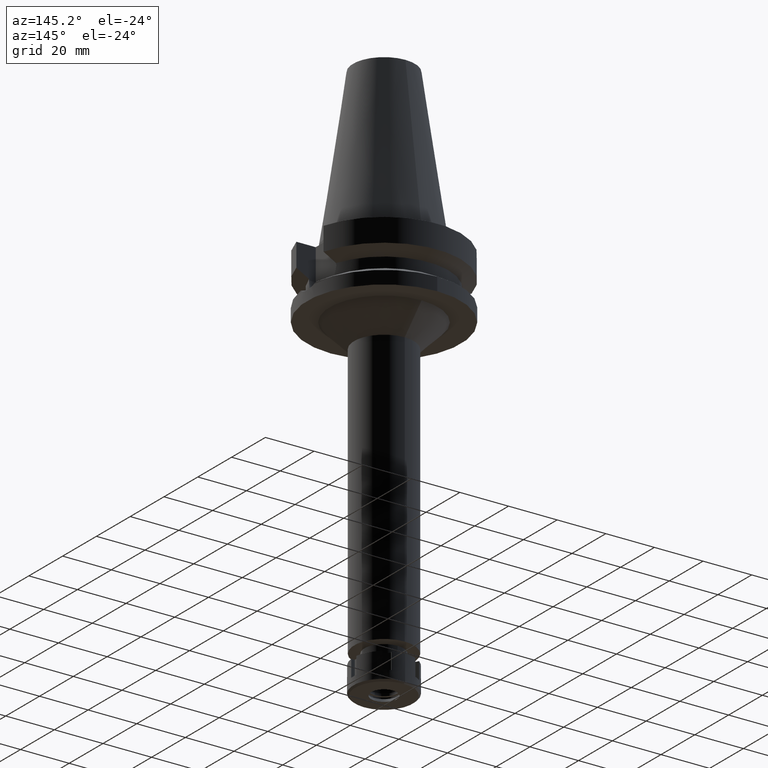
[diagram: clean part render]
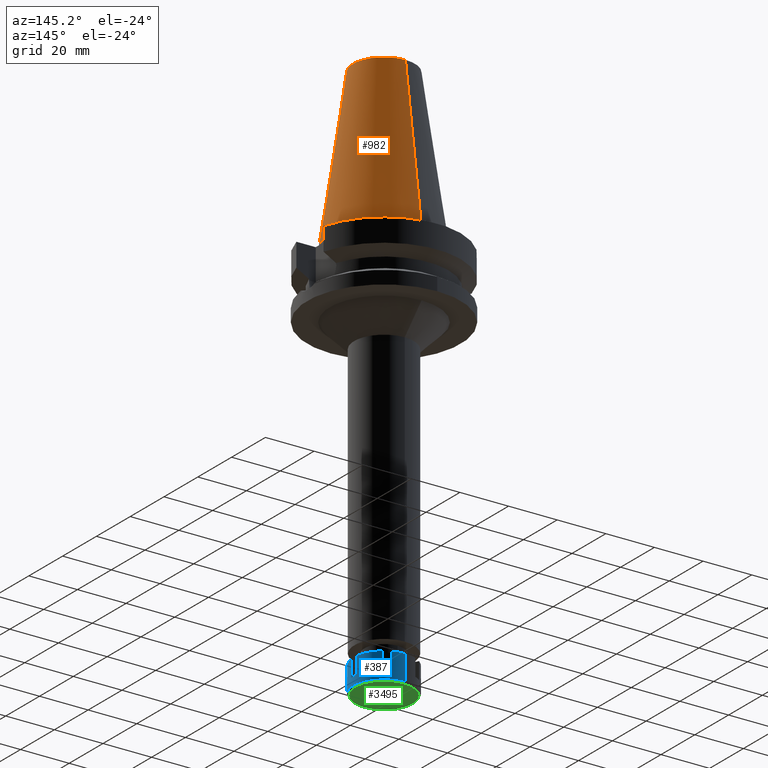
[diagram: same view with three faces highlighted in distinct colors, each labeled with its STEP entity id]
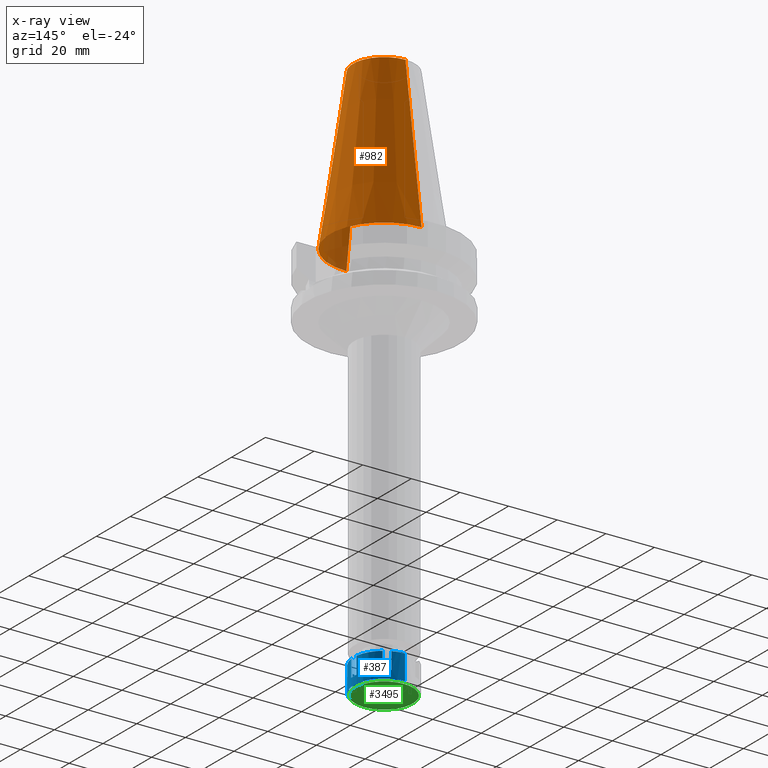
[diagram: x-ray of the same camera — body ghosted, the three highlighted faces saturated]
A machine part, auxiliary view with three faces highlighted in distinct colors.
The next image is the same camera in x-ray (body ghosted, the three faces saturated) — at least one of them is partly hidden behind the body in this view.
Their STEP definitions:

[orange] entity #982 — the highlighted conical surface has half-angle 8.297 deg.
#57 = EDGE_LOOP ( 'NONE', ( #3162, #2726, #2235, #1450 ) ) ;
#169 = LINE ( 'NONE', #730, #2817 ) ;
#188 = DIRECTION ( 'NONE',  ( 0.0000000000000000000, 1.000000000000000000, 0.0000000000000000000 ) ) ;
#192 = DIRECTION ( 'NONE',  ( 0.0000000000000000000, 1.000000000000000000, 0.0000000000000000000 ) ) ;
#277 = EDGE_CURVE ( 'NONE', #735, #799, #574, .T. ) ;
#487 = CARTESIAN_POINT ( 'NONE',  ( 0.0000000000000000000, 1.625106302469000024E-14, 65.40000000000000568 ) ) ;
#574 = CIRCLE ( 'NONE', #1051, 12.68766899429999917 ) ;
#685 = AXIS2_PLACEMENT_3D ( 'NONE', #2084, #2322, #1554 ) ;
#728 = EDGE_CURVE ( 'NONE', #1716, #2771, #2115, .T. ) ;
#730 = CARTESIAN_POINT ( 'NONE',  ( 0.0000000000000000000, 12.68766899429999917, 65.40000000000000568 ) ) ;
#735 = VERTEX_POINT ( 'NONE', #768 ) ;
#768 = CARTESIAN_POINT ( 'NONE',  ( 0.0000000000000000000, 12.68766899429999917, 65.40000000000000568 ) ) ;
#799 = VERTEX_POINT ( 'NONE', #1954 ) ;
#961 = DIRECTION ( 'NONE',  ( 0.0000000000000000000, -0.1443043893539925626, -0.9895333461855498891 ) ) ;
#982 = ADVANCED_FACE ( 'NONE', ( #3232 ), #3573, .T. ) ;
#1051 = AXIS2_PLACEMENT_3D ( 'NONE', #487, #2723, #192 ) ;
#1450 = ORIENTED_EDGE ( 'NONE', *, *, #1981, .F. ) ;
#1554 = DIRECTION ( 'NONE',  ( 0.0000000000000000000, -1.000000000000000000, 0.0000000000000000000 ) ) ;
#1716 = VERTEX_POINT ( 'NONE', #2248 ) ;
#1954 = CARTESIAN_POINT ( 'NONE',  ( 0.0000000000000000000, -12.68766899429999917, 65.40000000000000568 ) ) ;
#1981 = EDGE_CURVE ( 'NONE', #735, #1716, #169, .T. ) ;
#1984 = CARTESIAN_POINT ( 'NONE',  ( 0.0000000000000000000, -22.22500000000000142, 2.842170943039999687E-14 ) ) ;
#2084 = CARTESIAN_POINT ( 'NONE',  ( 0.0000000000000000000, 1.625106302469000024E-14, 32.70000000000000284 ) ) ;
#2115 = CIRCLE ( 'NONE', #3405, 22.22500000000000142 ) ;
#2148 = LINE ( 'NONE', #3509, #3113 ) ;
#2235 = ORIENTED_EDGE ( 'NONE', *, *, #728, .F. ) ;
#2248 = CARTESIAN_POINT ( 'NONE',  ( 0.0000000000000000000, 22.22500000000000142, 7.105427357600999334E-14 ) ) ;
#2322 = DIRECTION ( 'NONE',  ( 0.0000000000000000000, 0.0000000000000000000, -1.000000000000000000 ) ) ;
#2573 = EDGE_CURVE ( 'NONE', #799, #2771, #2148, .T. ) ;
#2707 = DIRECTION ( 'NONE',  ( 0.0000000000000000000, 0.1443043893539925626, -0.9895333461855498891 ) ) ;
#2719 = DIRECTION ( 'NONE',  ( 0.0000000000000000000, 0.0000000000000000000, -1.000000000000000000 ) ) ;
#2723 = DIRECTION ( 'NONE',  ( 0.0000000000000000000, 0.0000000000000000000, -1.000000000000000000 ) ) ;
#2726 = ORIENTED_EDGE ( 'NONE', *, *, #2573, .T. ) ;
#2771 = VERTEX_POINT ( 'NONE', #1984 ) ;
#2817 = VECTOR ( 'NONE', #2707, 1000.000000000000114 ) ;
#3113 = VECTOR ( 'NONE', #961, 1000.000000000000114 ) ;
#3162 = ORIENTED_EDGE ( 'NONE', *, *, #277, .T. ) ;
#3232 = FACE_OUTER_BOUND ( 'NONE', #57, .T. ) ;
#3405 = AXIS2_PLACEMENT_3D ( 'NONE', #3548, #2719, #188 ) ;
#3509 = CARTESIAN_POINT ( 'NONE',  ( 0.0000000000000000000, -12.68766899429999917, 65.40000000000000568 ) ) ;
#3548 = CARTESIAN_POINT ( 'NONE',  ( 0.0000000000000000000, 1.625106302469000024E-14, 2.842170943039999687E-14 ) ) ;
#3573 = CONICAL_SURFACE ( 'NONE', #685, 17.45633449714999941, 0.1448099680379422438 ) ;

[blue] entity #387 — the highlighted cylindrical surface (partial cylindrical patch) has radius 12.5 mm, axis along (0, 0, -1).
#10 = VERTEX_POINT ( 'NONE', #11 ) ;
#11 = CARTESIAN_POINT ( 'NONE',  ( 12.40967364599000078, 1.500000000000000000, 0.0000000000000000000 ) ) ;
#30 = VECTOR ( 'NONE', #1819, 1000.000000000000000 ) ;
#45 = ORIENTED_EDGE ( 'NONE', *, *, #1725, .T. ) ;
#73 = ORIENTED_EDGE ( 'NONE', *, *, #2090, .T. ) ;
#89 = CARTESIAN_POINT ( 'NONE',  ( 0.0000000000000000000, 12.50000000000000000, 0.0000000000000000000 ) ) ;
#94 = CIRCLE ( 'NONE', #814, 12.50000000000000355 ) ;
#96 = VECTOR ( 'NONE', #3644, 1000.000000000000000 ) ;
#102 = CARTESIAN_POINT ( 'NONE',  ( 4.905798717319999724, 11.49709263010000093, 0.0000000000000000000 ) ) ;
#147 = EDGE_LOOP ( 'NONE', ( #915, #45, #1071, #870, #2335, #2204, #1055, #2574, #3131, #2313, #1132, #3464, #677, #1455, #931, #73 ) ) ;
#154 = CIRCLE ( 'NONE', #629, 12.50000000000000178 ) ;
#191 = EDGE_CURVE ( 'NONE', #2784, #2708, #94, .T. ) ;
#193 = DIRECTION ( 'NONE',  ( 0.6003099942937818456, 0.7997674104081758939, 0.0000000000000000000 ) ) ;
#211 = CARTESIAN_POINT ( 'NONE',  ( 12.40967364599000078, -1.500000000000000000, 0.0000000000000000000 ) ) ;
#227 = VERTEX_POINT ( 'NONE', #1355 ) ;
#261 = DIRECTION ( 'NONE',  ( 0.0000000000000000000, 0.0000000000000000000, 1.000000000000000000 ) ) ;
#286 = LINE ( 'NONE', #3089, #96 ) ;
#298 = DIRECTION ( 'NONE',  ( 0.6003099942937818456, -0.7997674104081758939, 0.0000000000000000000 ) ) ;
#322 = VECTOR ( 'NONE', #1828, 1000.000000000000000 ) ;
#358 = VERTEX_POINT ( 'NONE', #597 ) ;
#387 = ADVANCED_FACE ( 'NONE', ( #1428 ), #844, .T. ) ;
#399 = AXIS2_PLACEMENT_3D ( 'NONE', #3027, #3582, #2185 ) ;
#433 = DIRECTION ( 'NONE',  ( 0.0000000000000000000, 0.0000000000000000000, 1.000000000000000000 ) ) ;
#488 = DIRECTION ( 'NONE',  ( 0.0000000000000000000, 0.0000000000000000000, -1.000000000000000000 ) ) ;
#513 = CARTESIAN_POINT ( 'NONE',  ( 0.0000000000000000000, 12.50000000000000000, -10.30000000000000071 ) ) ;
#528 = DIRECTION ( 'NONE',  ( 0.3924638973854109314, -0.9197674104082257385, 0.0000000000000000000 ) ) ;
#550 = EDGE_CURVE ( 'NONE', #2850, #3247, #2367, .T. ) ;
#572 = LINE ( 'NONE', #2307, #2770 ) ;
#597 = CARTESIAN_POINT ( 'NONE',  ( 4.905798717318000435, -11.49709263010000093, -7.000000000000000000 ) ) ;
#629 = AXIS2_PLACEMENT_3D ( 'NONE', #1983, #2828, #298 ) ;
#669 = AXIS2_PLACEMENT_3D ( 'NONE', #3324, #824, #783 ) ;
#677 = ORIENTED_EDGE ( 'NONE', *, *, #550, .F. ) ;
#678 = DIRECTION ( 'NONE',  ( 0.0000000000000000000, 0.0000000000000000000, -1.000000000000000000 ) ) ;
#703 = CARTESIAN_POINT ( 'NONE',  ( 7.503874928671999456, 9.997092630101999333, 0.0000000000000000000 ) ) ;
#783 = DIRECTION ( 'NONE',  ( 0.0000000000000000000, 1.000000000000000000, 0.0000000000000000000 ) ) ;
#787 = DIRECTION ( 'NONE',  ( 0.0000000000000000000, 0.0000000000000000000, -1.000000000000000000 ) ) ;
#804 = EDGE_CURVE ( 'NONE', #1891, #10, #3365, .T. ) ;
#813 = CIRCLE ( 'NONE', #2926, 12.50000000000000000 ) ;
#814 = AXIS2_PLACEMENT_3D ( 'NONE', #1028, #787, #528 ) ;
#824 = DIRECTION ( 'NONE',  ( 0.0000000000000000000, 0.0000000000000000000, -1.000000000000000000 ) ) ;
#835 = CARTESIAN_POINT ( 'NONE',  ( 4.905798717318000435, -11.49709263010000093, 0.0000000000000000000 ) ) ;
#844 = CYLINDRICAL_SURFACE ( 'NONE', #2287, 12.50000000000000000 ) ;
#870 = ORIENTED_EDGE ( 'NONE', *, *, #1590, .T. ) ;
#889 = DIRECTION ( 'NONE',  ( 0.0000000000000000000, 0.0000000000000000000, -1.000000000000000000 ) ) ;
#898 = DIRECTION ( 'NONE',  ( 0.0000000000000000000, 0.0000000000000000000, -1.000000000000000000 ) ) ;
#905 = CARTESIAN_POINT ( 'NONE',  ( 12.40967364599000078, -1.500000000000000000, 0.0000000000000000000 ) ) ;
#915 = ORIENTED_EDGE ( 'NONE', *, *, #3123, .F. ) ;
#931 = ORIENTED_EDGE ( 'NONE', *, *, #3069, .F. ) ;
#1028 = CARTESIAN_POINT ( 'NONE',  ( 0.0000000000000000000, 0.0000000000000000000, 0.0000000000000000000 ) ) ;
#1055 = ORIENTED_EDGE ( 'NONE', *, *, #2331, .F. ) ;
#1071 = ORIENTED_EDGE ( 'NONE', *, *, #804, .F. ) ;
#1083 = CARTESIAN_POINT ( 'NONE',  ( 0.0000000000000000000, 0.0000000000000000000, -7.000000000000000000 ) ) ;
#1118 = DIRECTION ( 'NONE',  ( 0.0000000000000000000, 0.0000000000000000000, -1.000000000000000000 ) ) ;
#1131 = CARTESIAN_POINT ( 'NONE',  ( 12.40967364599000078, 1.500000000000000000, -7.000000000000000000 ) ) ;
#1132 = ORIENTED_EDGE ( 'NONE', *, *, #2907, .T. ) ;
#1226 = CARTESIAN_POINT ( 'NONE',  ( 0.0000000000000000000, 0.0000000000000000000, -10.30000000000000071 ) ) ;
#1238 = CARTESIAN_POINT ( 'NONE',  ( 0.0000000000000000000, 0.0000000000000000000, -7.000000000000000000 ) ) ;
#1318 = CIRCLE ( 'NONE', #669, 12.50000000000000000 ) ;
#1335 = CARTESIAN_POINT ( 'NONE',  ( 7.503874928671999456, 9.997092630101999333, -7.000000000000000000 ) ) ;
#1348 = CARTESIAN_POINT ( 'NONE',  ( 0.0000000000000000000, 12.50000000000000000, 0.0000000000000000000 ) ) ;
#1355 = CARTESIAN_POINT ( 'NONE',  ( 12.40967364599000078, -1.500000000000000000, -7.000000000000000000 ) ) ;
#1424 = EDGE_CURVE ( 'NONE', #2837, #358, #154, .T. ) ;
#1428 = FACE_OUTER_BOUND ( 'NONE', #147, .T. ) ;
#1455 = ORIENTED_EDGE ( 'NONE', *, *, #3423, .T. ) ;
#1456 = EDGE_CURVE ( 'NONE', #2869, #3247, #813, .T. ) ;
#1459 = CIRCLE ( 'NONE', #3520, 12.50000000000000178 ) ;
#1468 = CARTESIAN_POINT ( 'NONE',  ( 0.0000000000000000000, 0.0000000000000000000, 0.0000000000000000000 ) ) ;
#1580 = AXIS2_PLACEMENT_3D ( 'NONE', #1238, #3477, #2623 ) ;
#1590 = EDGE_CURVE ( 'NONE', #1891, #227, #2521, .T. ) ;
#1645 = CARTESIAN_POINT ( 'NONE',  ( 0.0000000000000000000, -12.50000000000000000, -10.30000000000000071 ) ) ;
#1725 = EDGE_CURVE ( 'NONE', #3650, #10, #1459, .T. ) ;
#1766 = VERTEX_POINT ( 'NONE', #211 ) ;
#1818 = EDGE_CURVE ( 'NONE', #1766, #227, #2818, .T. ) ;
#1819 = DIRECTION ( 'NONE',  ( 0.0000000000000000000, 0.0000000000000000000, -1.000000000000000000 ) ) ;
#1828 = DIRECTION ( 'NONE',  ( 0.0000000000000000000, 0.0000000000000000000, 1.000000000000000000 ) ) ;
#1877 = AXIS2_PLACEMENT_3D ( 'NONE', #1083, #488, #3571 ) ;
#1891 = VERTEX_POINT ( 'NONE', #1131 ) ;
#1905 = VERTEX_POINT ( 'NONE', #3128 ) ;
#1983 = CARTESIAN_POINT ( 'NONE',  ( 0.0000000000000000000, 0.0000000000000000000, -7.000000000000000000 ) ) ;
#2090 = EDGE_CURVE ( 'NONE', #3422, #3651, #2874, .T. ) ;
#2185 = DIRECTION ( 'NONE',  ( 0.9927738916792689938, -0.1199999999999962208, 0.0000000000000000000 ) ) ;
#2204 = ORIENTED_EDGE ( 'NONE', *, *, #2773, .T. ) ;
#2287 = AXIS2_PLACEMENT_3D ( 'NONE', #1468, #1118, #2847 ) ;
#2292 = LINE ( 'NONE', #3413, #3093 ) ;
#2307 = CARTESIAN_POINT ( 'NONE',  ( 0.0000000000000000000, -12.50000000000000000, 0.0000000000000000000 ) ) ;
#2313 = ORIENTED_EDGE ( 'NONE', *, *, #191, .T. ) ;
#2331 = EDGE_CURVE ( 'NONE', #2837, #1905, #286, .T. ) ;
#2335 = ORIENTED_EDGE ( 'NONE', *, *, #1818, .F. ) ;
#2348 = CIRCLE ( 'NONE', #399, 12.50000000000000000 ) ;
#2367 = LINE ( 'NONE', #89, #30 ) ;
#2398 = CARTESIAN_POINT ( 'NONE',  ( 4.905798717319999724, 11.49709263010000093, -7.000000000000000000 ) ) ;
#2521 = CIRCLE ( 'NONE', #1877, 12.50000000000000000 ) ;
#2533 = CARTESIAN_POINT ( 'NONE',  ( 7.503874928671999456, -9.997092630101999333, -7.000000000000000000 ) ) ;
#2574 = ORIENTED_EDGE ( 'NONE', *, *, #1424, .T. ) ;
#2623 = DIRECTION ( 'NONE',  ( 0.3924638973856165447, 0.9197674104081380309, 0.0000000000000000000 ) ) ;
#2641 = CARTESIAN_POINT ( 'NONE',  ( 0.0000000000000000000, -12.50000000000000000, 0.0000000000000000000 ) ) ;
#2695 = LINE ( 'NONE', #703, #3620 ) ;
#2708 = VERTEX_POINT ( 'NONE', #2641 ) ;
#2770 = VECTOR ( 'NONE', #898, 1000.000000000000000 ) ;
#2773 = EDGE_CURVE ( 'NONE', #1766, #1905, #2348, .T. ) ;
#2784 = VERTEX_POINT ( 'NONE', #835 ) ;
#2818 = LINE ( 'NONE', #905, #3638 ) ;
#2828 = DIRECTION ( 'NONE',  ( 0.0000000000000000000, 0.0000000000000000000, -1.000000000000000000 ) ) ;
#2837 = VERTEX_POINT ( 'NONE', #2533 ) ;
#2847 = DIRECTION ( 'NONE',  ( 0.0000000000000000000, -1.000000000000000000, 0.0000000000000000000 ) ) ;
#2850 = VERTEX_POINT ( 'NONE', #1348 ) ;
#2869 = VERTEX_POINT ( 'NONE', #1645 ) ;
#2874 = CIRCLE ( 'NONE', #1580, 12.49999999999999822 ) ;
#2875 = VECTOR ( 'NONE', #261, 1000.000000000000000 ) ;
#2907 = EDGE_CURVE ( 'NONE', #2708, #2869, #572, .T. ) ;
#2926 = AXIS2_PLACEMENT_3D ( 'NONE', #1226, #433, #3244 ) ;
#3001 = CARTESIAN_POINT ( 'NONE',  ( 7.503874928671999456, 9.997092630101999333, 0.0000000000000000000 ) ) ;
#3025 = EDGE_CURVE ( 'NONE', #2784, #358, #2292, .T. ) ;
#3027 = CARTESIAN_POINT ( 'NONE',  ( 0.0000000000000000000, 0.0000000000000000000, 0.0000000000000000000 ) ) ;
#3069 = EDGE_CURVE ( 'NONE', #3422, #3116, #3556, .T. ) ;
#3089 = CARTESIAN_POINT ( 'NONE',  ( 7.503874928671999456, -9.997092630101999333, -7.000000000000000000 ) ) ;
#3093 = VECTOR ( 'NONE', #889, 1000.000000000000000 ) ;
#3116 = VERTEX_POINT ( 'NONE', #102 ) ;
#3123 = EDGE_CURVE ( 'NONE', #3650, #3651, #2695, .T. ) ;
#3128 = CARTESIAN_POINT ( 'NONE',  ( 7.503874928671999456, -9.997092630101999333, 0.0000000000000000000 ) ) ;
#3131 = ORIENTED_EDGE ( 'NONE', *, *, #3025, .F. ) ;
#3244 = DIRECTION ( 'NONE',  ( 0.0000000000000000000, -1.000000000000000000, 0.0000000000000000000 ) ) ;
#3247 = VERTEX_POINT ( 'NONE', #513 ) ;
#3311 = DIRECTION ( 'NONE',  ( 0.0000000000000000000, 0.0000000000000000000, -1.000000000000000000 ) ) ;
#3324 = CARTESIAN_POINT ( 'NONE',  ( 0.0000000000000000000, 0.0000000000000000000, 0.0000000000000000000 ) ) ;
#3365 = LINE ( 'NONE', #3381, #2875 ) ;
#3381 = CARTESIAN_POINT ( 'NONE',  ( 12.40967364599000078, 1.500000000000000000, -7.000000000000000000 ) ) ;
#3413 = CARTESIAN_POINT ( 'NONE',  ( 4.905798717318000435, -11.49709263010000093, 0.0000000000000000000 ) ) ;
#3420 = DIRECTION ( 'NONE',  ( 0.0000000000000000000, 0.0000000000000000000, -1.000000000000000000 ) ) ;
#3422 = VERTEX_POINT ( 'NONE', #3618 ) ;
#3423 = EDGE_CURVE ( 'NONE', #2850, #3116, #1318, .T. ) ;
#3464 = ORIENTED_EDGE ( 'NONE', *, *, #1456, .T. ) ;
#3477 = DIRECTION ( 'NONE',  ( 0.0000000000000000000, 0.0000000000000000000, -1.000000000000000000 ) ) ;
#3520 = AXIS2_PLACEMENT_3D ( 'NONE', #3593, #3311, #193 ) ;
#3556 = LINE ( 'NONE', #2398, #322 ) ;
#3571 = DIRECTION ( 'NONE',  ( 0.9927738916792689938, 0.1199999999999962208, 0.0000000000000000000 ) ) ;
#3582 = DIRECTION ( 'NONE',  ( 0.0000000000000000000, 0.0000000000000000000, -1.000000000000000000 ) ) ;
#3593 = CARTESIAN_POINT ( 'NONE',  ( 0.0000000000000000000, 0.0000000000000000000, 0.0000000000000000000 ) ) ;
#3618 = CARTESIAN_POINT ( 'NONE',  ( 4.905798717319999724, 11.49709263010000093, -7.000000000000000000 ) ) ;
#3620 = VECTOR ( 'NONE', #678, 1000.000000000000000 ) ;
#3638 = VECTOR ( 'NONE', #3420, 1000.000000000000000 ) ;
#3644 = DIRECTION ( 'NONE',  ( 0.0000000000000000000, 0.0000000000000000000, 1.000000000000000000 ) ) ;
#3650 = VERTEX_POINT ( 'NONE', #3001 ) ;
#3651 = VERTEX_POINT ( 'NONE', #1335 ) ;

[green] entity #3495 — the highlighted planar face has unit normal (0, 0, -1).
#122 = CARTESIAN_POINT ( 'NONE',  ( 0.0000000000000000000, 11.79999999999999893, -11.00000000000000000 ) ) ;
#223 = CARTESIAN_POINT ( 'NONE',  ( 0.0000000000000000000, 0.0000000000000000000, -11.00000000000000000 ) ) ;
#246 = FACE_OUTER_BOUND ( 'NONE', #1175, .T. ) ;
#262 = FACE_BOUND ( 'NONE', #3012, .T. ) ;
#495 = CIRCLE ( 'NONE', #1438, 11.79999999999999893 ) ;
#724 = DIRECTION ( 'NONE',  ( 0.0000000000000000000, -1.000000000000000000, 0.0000000000000000000 ) ) ;
#756 = CARTESIAN_POINT ( 'NONE',  ( 0.0000000000000000000, 0.0000000000000000000, -11.00000000000000000 ) ) ;
#779 = DIRECTION ( 'NONE',  ( 0.0000000000000000000, -1.000000000000000000, 0.0000000000000000000 ) ) ;
#856 = PLANE ( 'NONE',  #2736 ) ;
#988 = ORIENTED_EDGE ( 'NONE', *, *, #1494, .F. ) ;
#1062 = VERTEX_POINT ( 'NONE', #122 ) ;
#1175 = EDGE_LOOP ( 'NONE', ( #3312, #1550 ) ) ;
#1176 = EDGE_CURVE ( 'NONE', #2215, #2606, #1334, .T. ) ;
#1267 = DIRECTION ( 'NONE',  ( 0.0000000000000000000, 0.0000000000000000000, 1.000000000000000000 ) ) ;
#1334 = CIRCLE ( 'NONE', #3634, 5.250000000000000000 ) ;
#1366 = DIRECTION ( 'NONE',  ( 0.0000000000000000000, 0.0000000000000000000, -1.000000000000000000 ) ) ;
#1438 = AXIS2_PLACEMENT_3D ( 'NONE', #3358, #1893, #2165 ) ;
#1494 = EDGE_CURVE ( 'NONE', #2606, #2215, #3577, .T. ) ;
#1526 = CIRCLE ( 'NONE', #3465, 11.79999999999999893 ) ;
#1550 = ORIENTED_EDGE ( 'NONE', *, *, #2720, .F. ) ;
#1893 = DIRECTION ( 'NONE',  ( 0.0000000000000000000, 0.0000000000000000000, 1.000000000000000000 ) ) ;
#1988 = CARTESIAN_POINT ( 'NONE',  ( 0.0000000000000000000, 0.0000000000000000000, -11.00000000000000000 ) ) ;
#2085 = CARTESIAN_POINT ( 'NONE',  ( 0.0000000000000000000, -11.79999999999999893, -11.00000000000000000 ) ) ;
#2165 = DIRECTION ( 'NONE',  ( 0.0000000000000000000, 1.000000000000000000, 0.0000000000000000000 ) ) ;
#2206 = DIRECTION ( 'NONE',  ( 0.0000000000000000000, -1.000000000000000000, 0.0000000000000000000 ) ) ;
#2215 = VERTEX_POINT ( 'NONE', #2762 ) ;
#2363 = CARTESIAN_POINT ( 'NONE',  ( 0.0000000000000000000, 5.250000000000000000, -11.00000000000000000 ) ) ;
#2394 = DIRECTION ( 'NONE',  ( 0.0000000000000000000, 1.000000000000000000, 0.0000000000000000000 ) ) ;
#2455 = AXIS2_PLACEMENT_3D ( 'NONE', #756, #3278, #2394 ) ;
#2588 = VERTEX_POINT ( 'NONE', #2085 ) ;
#2606 = VERTEX_POINT ( 'NONE', #2363 ) ;
#2720 = EDGE_CURVE ( 'NONE', #2588, #1062, #1526, .T. ) ;
#2736 = AXIS2_PLACEMENT_3D ( 'NONE', #1988, #1366, #2206 ) ;
#2762 = CARTESIAN_POINT ( 'NONE',  ( 0.0000000000000000000, -5.250000000000000000, -11.00000000000000000 ) ) ;
#3012 = EDGE_LOOP ( 'NONE', ( #988, #3129 ) ) ;
#3026 = DIRECTION ( 'NONE',  ( 0.0000000000000000000, 0.0000000000000000000, -1.000000000000000000 ) ) ;
#3129 = ORIENTED_EDGE ( 'NONE', *, *, #1176, .F. ) ;
#3263 = EDGE_CURVE ( 'NONE', #1062, #2588, #495, .T. ) ;
#3278 = DIRECTION ( 'NONE',  ( 0.0000000000000000000, 0.0000000000000000000, -1.000000000000000000 ) ) ;
#3312 = ORIENTED_EDGE ( 'NONE', *, *, #3263, .F. ) ;
#3358 = CARTESIAN_POINT ( 'NONE',  ( 0.0000000000000000000, 0.0000000000000000000, -11.00000000000000000 ) ) ;
#3465 = AXIS2_PLACEMENT_3D ( 'NONE', #3544, #1267, #724 ) ;
#3495 = ADVANCED_FACE ( 'NONE', ( #246, #262 ), #856, .T. ) ;
#3544 = CARTESIAN_POINT ( 'NONE',  ( 0.0000000000000000000, 0.0000000000000000000, -11.00000000000000000 ) ) ;
#3577 = CIRCLE ( 'NONE', #2455, 5.250000000000000000 ) ;
#3634 = AXIS2_PLACEMENT_3D ( 'NONE', #223, #3026, #779 ) ;